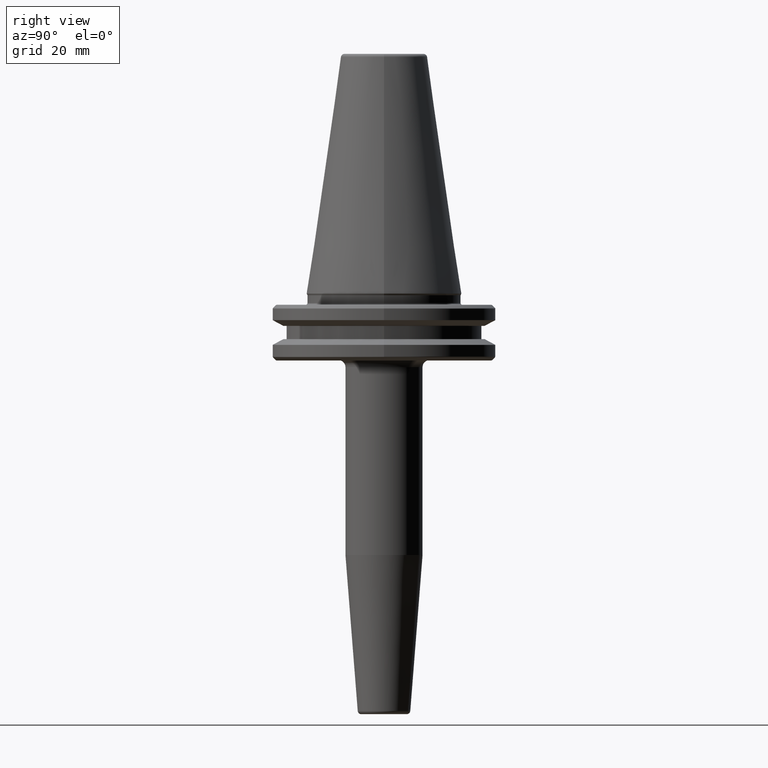
[diagram: clean part render]
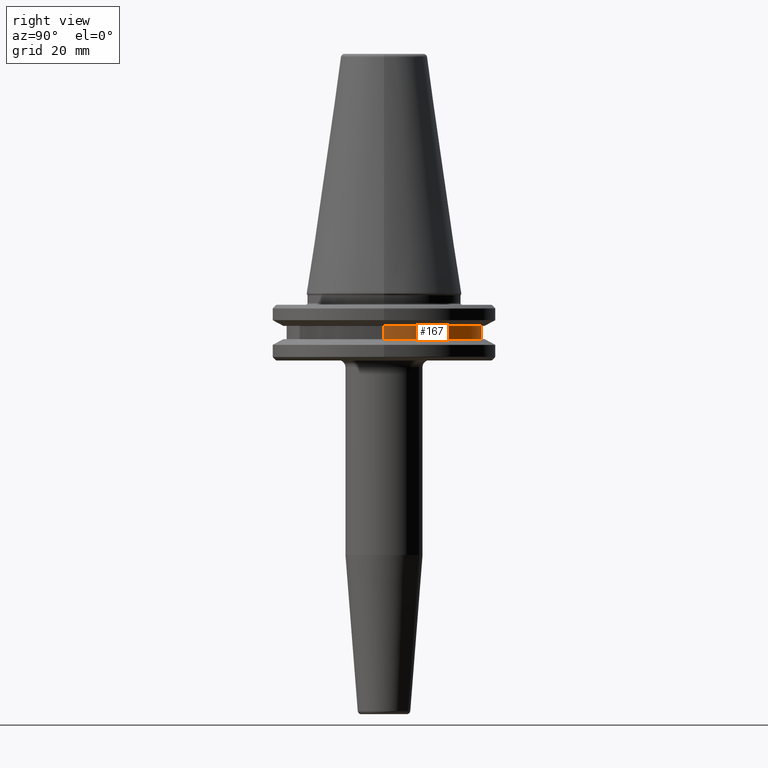
[diagram: same view with one face highlighted and labeled with its STEP entity id]
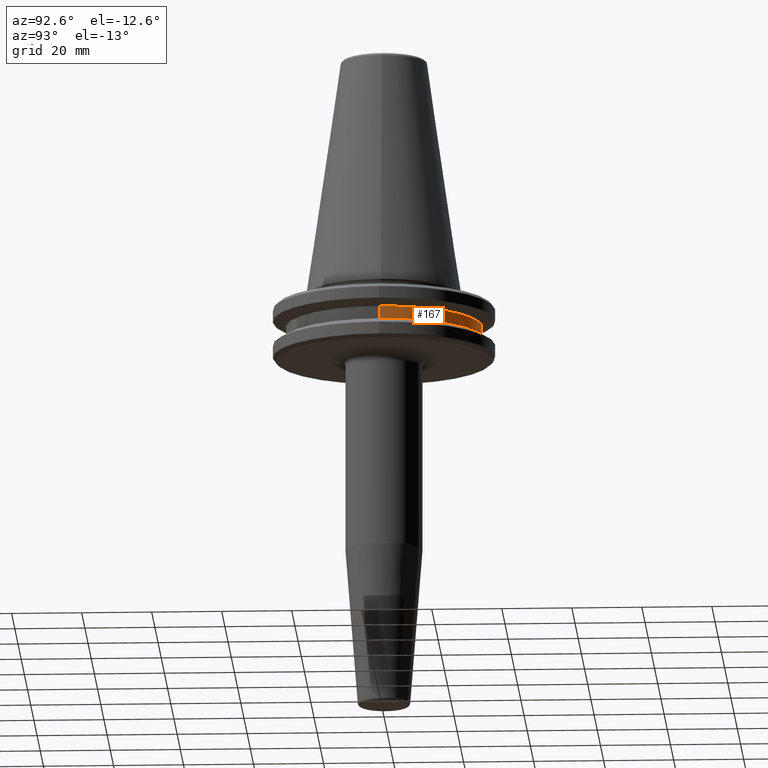
[diagram: same view with one face highlighted and labeled with its STEP entity id]
A machine part, right view. The second image highlights one B-rep face of the part: STEP entity #167.
A second angle (auxiliary view) of the same face is appended — the face is thin or edge-on in the first view.
In plain terms, the highlighted cylindrical surface (partial cylindrical patch) has radius 28 mm, axis along (-0, -0, 1).
Its self-contained STEP definition (entity closure, byte-faithful):
#7 = ORIENTED_EDGE ( 'NONE', *, *, #1101, .F. ) ;
#27 = VERTEX_POINT ( 'NONE', #765 ) ;
#28 = CARTESIAN_POINT ( 'NONE',  ( 0.0000000000000000000, 0.0000000000000000000, 113.5216080541959500 ) ) ;
#86 = CARTESIAN_POINT ( 'NONE',  ( -28.00000000000000000, 3.429011037612589300E-015, 113.5216080541959500 ) ) ;
#127 = VERTEX_POINT ( 'NONE', #304 ) ;
#167 = ADVANCED_FACE ( 'NONE', ( #1040 ), #1241, .T. ) ;
#222 = DIRECTION ( 'NONE',  ( -0.0000000000000000000, -0.0000000000000000000, 1.000000000000000000 ) ) ;
#235 = DIRECTION ( 'NONE',  ( 1.000000000000000000, 0.0000000000000000000, 0.0000000000000000000 ) ) ;
#304 = CARTESIAN_POINT ( 'NONE',  ( -28.00000000000000000, 3.429011037612589300E-015, -13.00000000000001100 ) ) ;
#367 = DIRECTION ( 'NONE',  ( -0.0000000000000000000, -0.0000000000000000000, 1.000000000000000000 ) ) ;
#420 = VERTEX_POINT ( 'NONE', #863 ) ;
#465 = CARTESIAN_POINT ( 'NONE',  ( 0.0000000000000000000, 0.0000000000000000000, -13.00000000000001100 ) ) ;
#544 = EDGE_CURVE ( 'NONE', #27, #420, #1168, .T. ) ;
#586 = LINE ( 'NONE', #86, #832 ) ;
#619 = VECTOR ( 'NONE', #1148, 1000.000000000000000 ) ;
#632 = ORIENTED_EDGE ( 'NONE', *, *, #1129, .T. ) ;
#643 = VERTEX_POINT ( 'NONE', #910 ) ;
#660 = AXIS2_PLACEMENT_3D ( 'NONE', #1005, #718, #235 ) ;
#667 = DIRECTION ( 'NONE',  ( -0.0000000000000000000, -0.0000000000000000000, 1.000000000000000000 ) ) ;
#707 = ORIENTED_EDGE ( 'NONE', *, *, #972, .T. ) ;
#718 = DIRECTION ( 'NONE',  ( -0.0000000000000000000, -0.0000000000000000000, 1.000000000000000000 ) ) ;
#730 = ORIENTED_EDGE ( 'NONE', *, *, #544, .F. ) ;
#756 = DIRECTION ( 'NONE',  ( 1.000000000000000000, 0.0000000000000000000, 0.0000000000000000000 ) ) ;
#765 = CARTESIAN_POINT ( 'NONE',  ( 28.00000000000000000, 0.0000000000000000000, -9.199999999999999300 ) ) ;
#799 = EDGE_LOOP ( 'NONE', ( #707, #632, #730, #7 ) ) ;
#832 = VECTOR ( 'NONE', #667, 1000.000000000000000 ) ;
#857 = LINE ( 'NONE', #1248, #619 ) ;
#863 = CARTESIAN_POINT ( 'NONE',  ( -28.00000000000000000, 3.429011037612589300E-015, -9.199999999999999300 ) ) ;
#895 = DIRECTION ( 'NONE',  ( 1.000000000000000000, 0.0000000000000000000, 0.0000000000000000000 ) ) ;
#910 = CARTESIAN_POINT ( 'NONE',  ( 28.00000000000000000, 0.0000000000000000000, -13.00000000000001100 ) ) ;
#972 = EDGE_CURVE ( 'NONE', #643, #127, #1170, .T. ) ;
#1005 = CARTESIAN_POINT ( 'NONE',  ( 0.0000000000000000000, 0.0000000000000000000, -9.199999999999999300 ) ) ;
#1040 = FACE_OUTER_BOUND ( 'NONE', #799, .T. ) ;
#1084 = AXIS2_PLACEMENT_3D ( 'NONE', #465, #367, #756 ) ;
#1101 = EDGE_CURVE ( 'NONE', #643, #27, #857, .T. ) ;
#1129 = EDGE_CURVE ( 'NONE', #127, #420, #586, .T. ) ;
#1138 = AXIS2_PLACEMENT_3D ( 'NONE', #28, #222, #895 ) ;
#1148 = DIRECTION ( 'NONE',  ( -0.0000000000000000000, -0.0000000000000000000, 1.000000000000000000 ) ) ;
#1168 = CIRCLE ( 'NONE', #660, 28.00000000000000000 ) ;
#1170 = CIRCLE ( 'NONE', #1084, 28.00000000000000000 ) ;
#1241 = CYLINDRICAL_SURFACE ( 'NONE', #1138, 28.00000000000000000 ) ;
#1248 = CARTESIAN_POINT ( 'NONE',  ( 28.00000000000000000, 0.0000000000000000000, 113.5216080541959500 ) ) ;